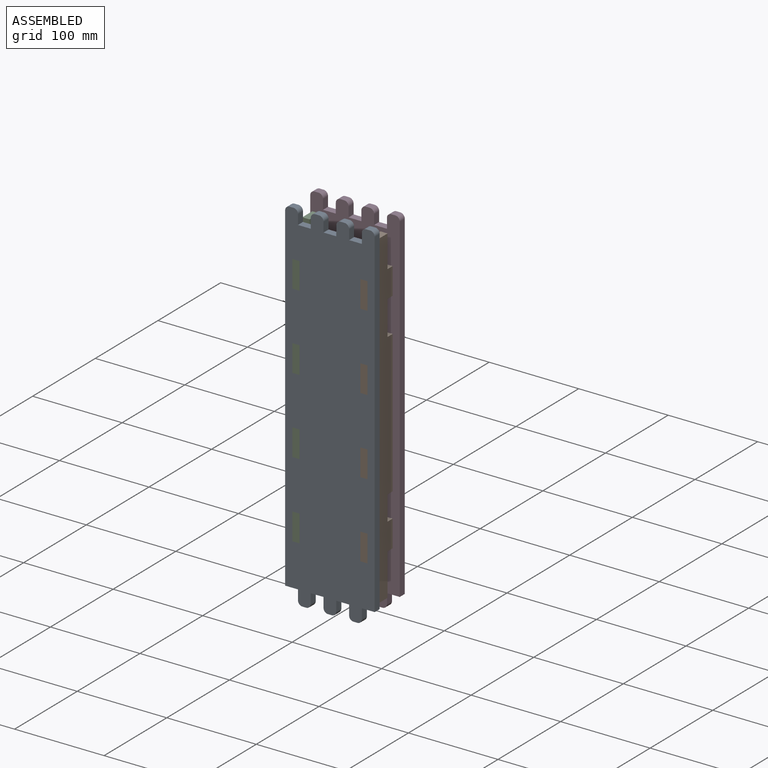
[diagram: assembled view]
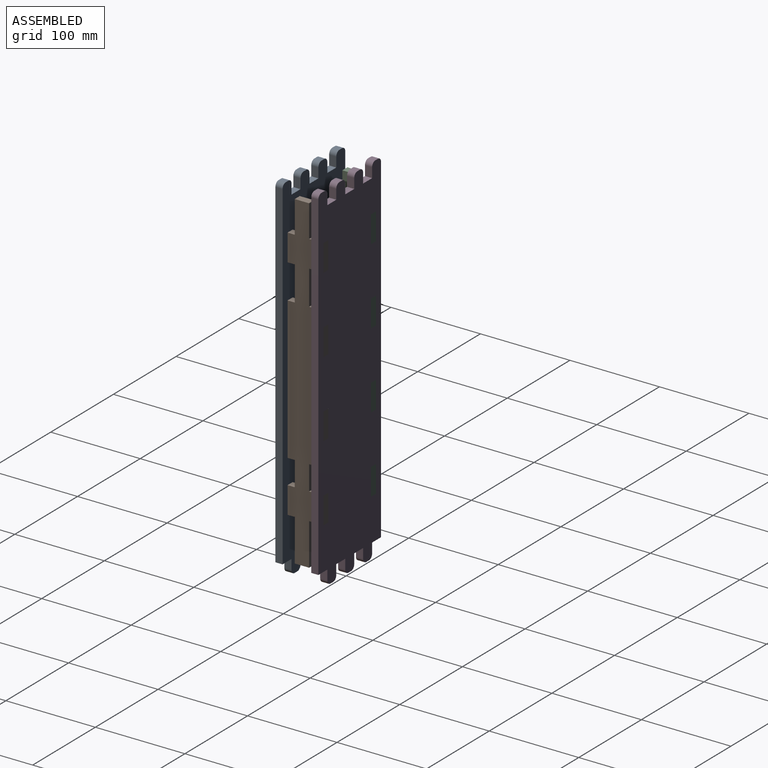
[diagram: assembled view, second angle]
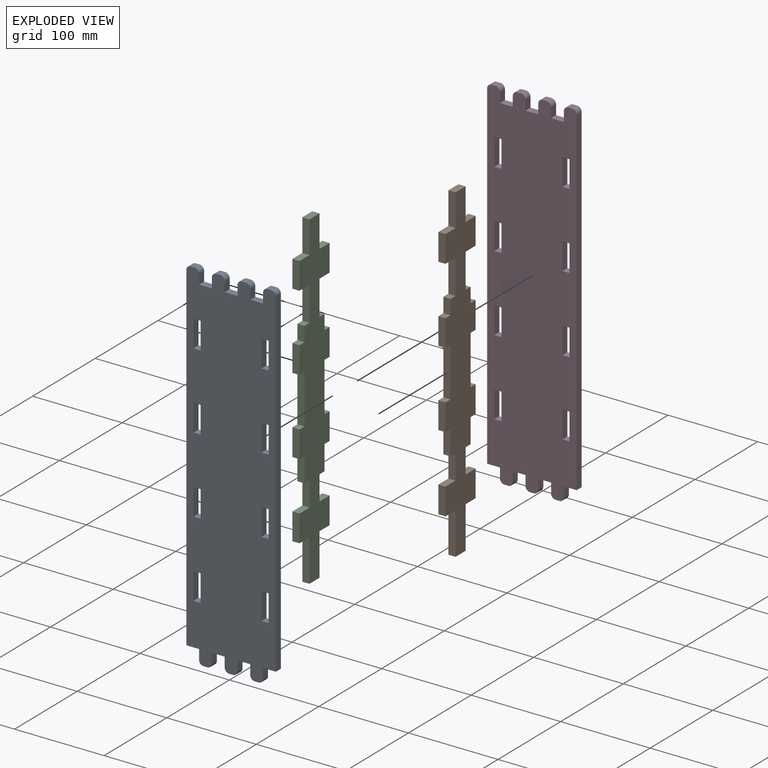
[diagram: exploded view]
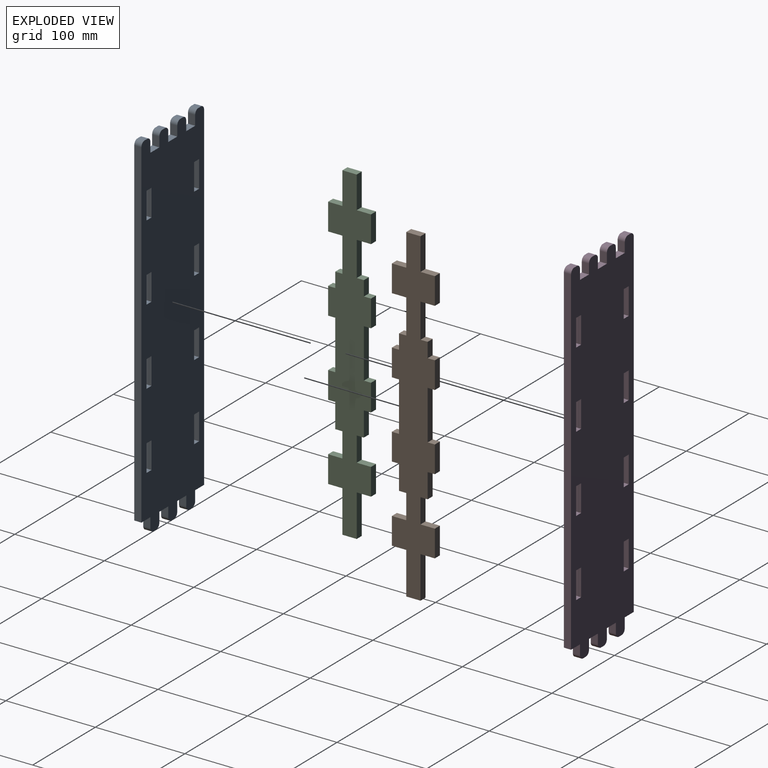
[diagram: exploded view, second angle]
ASSEMBLY  parts=4 mates=3
PART A: 76 faces, bbox 100x8x400 mm
  f0: plane 400x100mm, normal (0,-1,0), area 36404.9mm2, adj f2,f3,f4,f5,f6,f7,f8,f9
  f1: plane 400x100mm, normal (0,1,0), area 36404.9mm2, adj f2,f3,f4,f5,f6,f7,f8,f9
  f2: plane 379x8mm, normal (-1,0,0), area 3032mm2, adj f0,f1,f29,f43
  f3: plane 8x4.29mm, normal (0,0,-1), area 34.3mm2, adj f0,f1,f33,f35
  f4: plane 8x4.29mm, normal (0,0,-1), area 34.3mm2, adj f0,f1,f32,f34
  f5: plane 8x4.29mm, normal (0,0,-1), area 34.3mm2, adj f0,f1,f30,f31
  f6: plane 379x8mm, normal (1,0,0), area 3032mm2, adj f0,f1,f26,f42
  f7: plane 8x4.29mm, normal (0,0,1), area 34.3mm2, adj f0,f1,f36,f39
  f8: plane 8x4.29mm, normal (0,0,1), area 34.3mm2, adj f0,f1,f37,f42
  f9: plane 8x4.29mm, normal (0,0,1), area 34.3mm2, adj f0,f1,f38,f41
  f10: plane 8x4.29mm, normal (0,0,1), area 34.3mm2, adj f0,f1,f40,f43
  f11: plane 11x8mm, normal (1,0,0), area 88mm2, adj f0,f1,f12,f40
  f12: plane 14.29x8mm, normal (0,0,1), area 114.3mm2, adj f0,f1,f11,f13
  f13: plane 11x8mm, normal (-1,0,0), area 88mm2, adj f0,f1,f12,f41
  f14: plane 11x8mm, normal (-1,0,0), area 88mm2, adj f0,f1,f15,f31
  f15: plane 14.29x8mm, normal (0,0,-1), area 114.3mm2, adj f0,f1,f14,f16
  f16: plane 11x8mm, normal (1,0,0), area 88mm2, adj f0,f1,f15,f32
  f17: plane 11x8mm, normal (1,0,0), area 88mm2, adj f0,f1,f19,f33
  f18: plane 11x8mm, normal (-1,0,0), area 88mm2, adj f0,f1,f19,f34
  f19: plane 14.29x8mm, normal (0,0,-1), area 114.3mm2, adj f0,f1,f17,f18
  f20: plane 11x8mm, normal (1,0,0), area 88mm2, adj f0,f1,f21,f36
  f21: plane 14.29x8mm, normal (0,0,1), area 114.3mm2, adj f0,f1,f20,f22
  f22: plane 11x8mm, normal (-1,0,0), area 88mm2, adj f0,f1,f21,f37
  f23: plane 11x8mm, normal (1,0,0), area 88mm2, adj f0,f1,f24,f38
  f24: plane 14.29x8mm, normal (0,0,1), area 114.3mm2, adj f0,f1,f23,f25
  f25: plane 11x8mm, normal (-1,0,0), area 88mm2, adj f0,f1,f24,f39
  f26: plane 14.29x8mm, normal (0,0,-1), area 114.3mm2, adj f0,f1,f6,f27
  f27: plane 11x8mm, normal (1,0,0), area 88mm2, adj f0,f1,f26,f30
  f28: plane 11x8mm, normal (-1,0,0), area 88mm2, adj f0,f1,f29,f35
  f29: plane 14.29x8mm, normal (0,0,-1), area 114.3mm2, adj f0,f1,f2,f28
  f30: cylinder r=5mm len=8mm, axis (0,1,0), area 62.8mm2, adj f0,f1,f5,f27
  f31: cylinder r=5mm len=8mm, axis (0,-1,0), area 62.8mm2, adj f0,f1,f5,f14
  f32: cylinder r=5mm len=8mm, axis (0,1,0), area 62.8mm2, adj f0,f1,f4,f16
  f33: cylinder r=5mm len=8mm, axis (0,1,0), area 62.8mm2, adj f0,f1,f3,f17
  f34: cylinder r=5mm len=8mm, axis (0,-1,0), area 62.8mm2, adj f0,f1,f4,f18
  f35: cylinder r=5mm len=8mm, axis (0,1,0), area 62.8mm2, adj f0,f1,f3,f28
  f36: cylinder r=5mm len=8mm, axis (0,1,0), area 62.8mm2, adj f0,f1,f7,f20
  f37: cylinder r=5mm len=8mm, axis (0,-1,0), area 62.8mm2, adj f0,f1,f8,f22
  f38: cylinder r=5mm len=8mm, axis (0,1,0), area 62.8mm2, adj f0,f1,f9,f23
  f39: cylinder r=5mm len=8mm, axis (0,-1,0), area 62.8mm2, adj f0,f1,f7,f25
  f40: cylinder r=5mm len=8mm, axis (0,1,0), area 62.8mm2, adj f0,f1,f10,f11
  f41: cylinder r=5mm len=8mm, axis (0,-1,0), area 62.8mm2, adj f0,f1,f9,f13
  f42: cylinder r=5mm len=8mm, axis (0,-1,0), area 62.8mm2, adj f0,f1,f6,f8
  f43: cylinder r=5mm len=8mm, axis (0,1,0), area 62.8mm2, adj f0,f1,f2,f10
  f44: plane 8x8mm, normal (0,0,-1), area 64mm2, adj f0,f1,f45,f47
  f45: plane 30x8mm, normal (-1,0,0), area 240mm2, adj f0,f1,f44,f46
  f46: plane 8x8mm, normal (0,0,1), area 64mm2, adj f0,f1,f45,f47
  f47: plane 30x8mm, normal (1,0,0), area 240mm2, adj f0,f1,f44,f46
  f48: plane 8x8mm, normal (0,0,-1), area 64mm2, adj f0,f1,f49,f51
  f49: plane 30x8mm, normal (-1,0,0), area 240mm2, adj f0,f1,f48,f50
  f50: plane 8x8mm, normal (0,0,1), area 64mm2, adj f0,f1,f49,f51
  f51: plane 30x8mm, normal (1,0,0), area 240mm2, adj f0,f1,f48,f50
  f52: plane 8x8mm, normal (0,0,-1), area 64mm2, adj f0,f1,f53,f55
  f53: plane 30x8mm, normal (-1,0,0), area 240mm2, adj f0,f1,f52,f54
  f54: plane 8x8mm, normal (0,0,1), area 64mm2, adj f0,f1,f53,f55
  f55: plane 30x8mm, normal (1,0,0), area 240mm2, adj f0,f1,f52,f54
  f56: plane 8x8mm, normal (0,0,-1), area 64mm2, adj f0,f1,f57,f59
  f57: plane 30x8mm, normal (-1,0,0), area 240mm2, adj f0,f1,f56,f58
  f58: plane 8x8mm, normal (0,0,1), area 64mm2, adj f0,f1,f57,f59
  f59: plane 30x8mm, normal (1,0,0), area 240mm2, adj f0,f1,f56,f58
  f60: plane 8x8mm, normal (0,0,-1), area 64mm2, adj f0,f1,f61,f63
  f61: plane 30x8mm, normal (-1,0,0), area 240mm2, adj f0,f1,f60,f62
  f62: plane 8x8mm, normal (0,0,1), area 64mm2, adj f0,f1,f61,f63
  f63: plane 30x8mm, normal (1,0,0), area 240mm2, adj f0,f1,f60,f62
  f64: plane 8x8mm, normal (0,0,-1), area 64mm2, adj f0,f1,f65,f67
  f65: plane 30x8mm, normal (-1,0,0), area 240mm2, adj f0,f1,f64,f66
  f66: plane 8x8mm, normal (0,0,1), area 64mm2, adj f0,f1,f65,f67
  f67: plane 30x8mm, normal (1,0,0), area 240mm2, adj f0,f1,f64,f66
  f68: plane 8x8mm, normal (0,0,-1), area 64mm2, adj f0,f1,f69,f71
  f69: plane 30x8mm, normal (-1,0,0), area 240mm2, adj f0,f1,f68,f70
  f70: plane 8x8mm, normal (0,0,1), area 64mm2, adj f0,f1,f69,f71
  f71: plane 30x8mm, normal (1,0,0), area 240mm2, adj f0,f1,f68,f70
  f72: plane 8x8mm, normal (0,0,-1), area 64mm2, adj f0,f1,f73,f75
  f73: plane 30x8mm, normal (-1,0,0), area 240mm2, adj f0,f1,f72,f74
  f74: plane 8x8mm, normal (0,0,1), area 64mm2, adj f0,f1,f73,f75
  f75: plane 30x8mm, normal (1,0,0), area 240mm2, adj f0,f1,f72,f74
PART B: 46 faces, bbox 48x8x368 mm
  f0: plane 36x8mm, normal (1,0,0), area 288mm2, adj f10,f12,f13,f44
  f1: plane 36x8mm, normal (-1,0,0), area 288mm2, adj f10,f12,f13,f42
  f2: plane 16.5x8mm, normal (1,0,0), area 132mm2, adj f12,f13,f18,f38
  f3: plane 16.5x8mm, normal (-1,0,0), area 132mm2, adj f12,f13,f20,f35
  f4: plane 55x8mm, normal (1,0,0), area 440mm2, adj f12,f13,f32,f37
  f5: plane 55x8mm, normal (-1,0,0), area 440mm2, adj f12,f13,f29,f36
  f6: plane 27.5x8mm, normal (-1,0,0), area 220mm2, adj f12,f13,f14,f25
  f7: plane 27.5x8mm, normal (1,0,0), area 220mm2, adj f12,f13,f16,f23
  f8: plane 16x8mm, normal (0,0,-1), area 128mm2, adj f12,f13,f15,f17
  f9: plane 27.5x8mm, normal (1,0,0), area 220mm2, adj f12,f13,f16,f31
  f10: plane 16x8mm, normal (0,0,1), area 128mm2, adj f0,f1,f12,f13
  f11: plane 27.5x8mm, normal (-1,0,0), area 220mm2, adj f12,f13,f14,f30
  f12: plane 368x48mm, normal (0,-1,0), area 11312mm2, adj f0,f1,f2,f3,f4,f5,f6,f7
  f13: plane 368x48mm, normal (0,1,0), area 11312mm2, adj f0,f1,f2,f3,f4,f5,f6,f7
  f14: plane 8x8mm, normal (0,0,-1), area 64mm2, adj f6,f11,f12,f13
  f15: plane 47x8mm, normal (-1,0,0), area 376mm2, adj f8,f12,f13,f26
  f16: plane 8x8mm, normal (0,0,-1), area 64mm2, adj f7,f9,f12,f13
  f17: plane 47x8mm, normal (1,0,0), area 376mm2, adj f8,f12,f13,f24
  f18: plane 8x8mm, normal (0,0,1), area 64mm2, adj f2,f12,f13,f19
  f19: plane 38.5x8mm, normal (1,0,0), area 308mm2, adj f12,f13,f18,f43
  f20: plane 8x8mm, normal (0,0,1), area 64mm2, adj f3,f12,f13,f21
  f21: plane 38.5x8mm, normal (-1,0,0), area 308mm2, adj f12,f13,f20,f41
  f22: plane 30x8mm, normal (1,0,0), area 240mm2, adj f12,f13,f23,f24
  f23: plane 16x8mm, normal (0,0,1), area 128mm2, adj f7,f12,f13,f22
  f24: plane 16x8mm, normal (0,0,-1), area 128mm2, adj f12,f13,f17,f22
  f25: plane 16x8mm, normal (0,0,1), area 128mm2, adj f6,f12,f13,f27
  f26: plane 16x8mm, normal (0,0,-1), area 128mm2, adj f12,f13,f15,f27
  f27: plane 30x8mm, normal (-1,0,0), area 240mm2, adj f12,f13,f25,f26
  f28: plane 30x8mm, normal (-1,0,0), area 240mm2, adj f12,f13,f29,f30
  f29: plane 8x8mm, normal (0,0,1), area 64mm2, adj f5,f12,f13,f28
  f30: plane 8x8mm, normal (0,0,-1), area 64mm2, adj f11,f12,f13,f28
  f31: plane 8x8mm, normal (0,0,-1), area 64mm2, adj f9,f12,f13,f33
  f32: plane 8x8mm, normal (0,0,1), area 64mm2, adj f4,f12,f13,f33
  f33: plane 30x8mm, normal (1,0,0), area 240mm2, adj f12,f13,f31,f32
  f34: plane 30x8mm, normal (-1,0,0), area 240mm2, adj f12,f13,f35,f36
  f35: plane 8x8mm, normal (0,0,1), area 64mm2, adj f3,f12,f13,f34
  f36: plane 8x8mm, normal (0,0,-1), area 64mm2, adj f5,f12,f13,f34
  f37: plane 8x8mm, normal (0,0,-1), area 64mm2, adj f4,f12,f13,f39
  f38: plane 8x8mm, normal (0,0,1), area 64mm2, adj f2,f12,f13,f39
  f39: plane 30x8mm, normal (1,0,0), area 240mm2, adj f12,f13,f37,f38
  f40: plane 30x8mm, normal (-1,0,0), area 240mm2, adj f12,f13,f41,f42
  f41: plane 16x8mm, normal (0,0,-1), area 128mm2, adj f12,f13,f21,f40
  f42: plane 16x8mm, normal (0,0,1), area 128mm2, adj f1,f12,f13,f40
  f43: plane 16x8mm, normal (0,0,-1), area 128mm2, adj f12,f13,f19,f45
  f44: plane 16x8mm, normal (0,0,1), area 128mm2, adj f0,f12,f13,f45
  f45: plane 30x8mm, normal (1,0,0), area 240mm2, adj f12,f13,f43,f44
PART C: same geometry as B
PART D: same geometry as A
PLACE A t=(-148.03,65.52,-24.31)mm fixed
PLACE B rot(axis=(0,0,-1),90deg) t=(-56.03,-34.48,-24.31)mm
PLACE C rot(axis=(0,0,1),90deg) t=(-140.03,197.52,-24.31)mm
PLACE D rot(axis=(0,0,1),180deg) t=(-48.03,97.52,-24.31)mm
MATE fastened B.f22 <-> A.f0  axis (0,-1,0) through (-56.03,57.52,38.69)mm
MATE fastened C.f27 <-> A.f0  axis (0,-1,0) through (-140.03,57.52,38.69)mm
MATE fastened D.f0 <-> C.f22  axis (0,1,0) through (-140.03,105.52,38.69)mm
